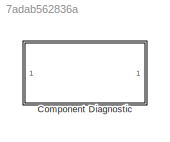
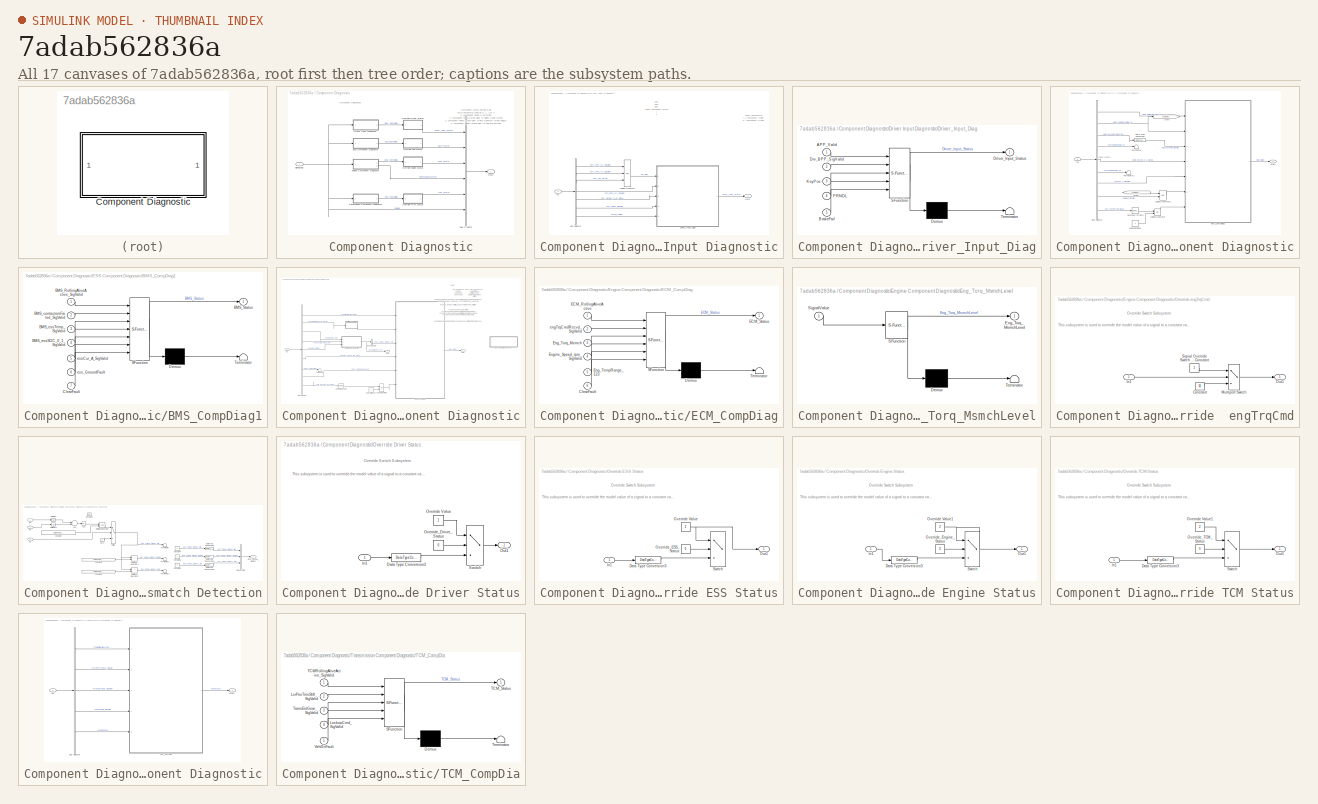
[diagram: thumbnail index - all 17 canvases of the model, root first then tree order]
MODEL slx_7adab562836a
KIND library
CONFIG AbsTol = auto
CONFIG EnableMultiTasking = off
CONFIG FixedStep = auto
CONFIG MaxStep = auto
CONFIG MinStep = auto
CONFIG RelTol = 1e-3
CONFIG SampleTimeConstraint = Unconstrained
CONFIG Solver = VariableStepAuto
CONFIG SolverName = VariableStepAuto
CONFIG StartTime = 0.0
CONFIG StopTime = 10.0
BLOCK [SubSystem] Component Diagnostic
  Ports = [1, 1]
  RequestExecContextInheritance = off
  Variant = off
BLOCK [BusCreator] Component Diagnostic/Bus Creator
  DisplayOption = bar
  InheritFromInputs = on
  Inputs = 6
  Ports = [6, 1]
BLOCK [SubSystem] Component Diagnostic/Driver Input Diagnostic
  Ports = [1, 1]
  RequestExecContextInheritance = off
  Variant = off
BLOCK [BusSelector] Component Diagnostic/Driver Input Diagnostic/Bus Selector
  OutputAsBus = off
  OutputSignals = Driver_SigDiag.Drv_APP1_[%]_SigValid,Driver_SigDiag.Drv_APP2_[%]_SigValid,Driver_SigDiag.Drv_APP_Agree,Driver_SigDiag.Drv_BPP_[%]_SigValid,Driver_SigDiag.Drv_KeyPos_[0 3]_SigValid,Driver_SigDiag.Drv_PRNDL_SigValid,Driver_SigDiag.Brake_Failed
  Ports = [1, 7]
BLOCK [SubSystem] Component Diagnostic/Driver Input Diagnostic/Driver_Input_Diag
  ErrorFcn = Stateflow.Translate.translate
  PermitHierarchicalResolution = ExplicitOnly
  Ports = [5, 1]
  RequestExecContextInheritance = off
  SFBlockType = Chart
  TreatAsAtomicUnit = on
  Variant = off
BLOCK [Demux] Component Diagnostic/Driver Input Diagnostic/Driver_Input_Diag/ Demux 
  Outputs = 1
  Ports = [1, 1]
BLOCK [S-Function] Component Diagnostic/Driver Input Diagnostic/Driver_Input_Diag/ SFunction 
  EnableBusSupport = on
  FunctionName = sf_sfun
  PortCounts = [5 2]
  Ports = [5, 2]
  SFcnIsStateOwnerBlock = off
  SFunctionDeploymentMode = off
  Tag = Stateflow S-Function lib_ComponentDiagnostic 3
BLOCK [Terminator] Component Diagnostic/Driver Input Diagnostic/Driver_Input_Diag/ Terminator 
BLOCK [Inport] Component Diagnostic/Driver Input Diagnostic/Driver_Input_Diag/APP_Valid
  IconDisplay = Port number
BLOCK [Inport] Component Diagnostic/Driver Input Diagnostic/Driver_Input_Diag/BrakeFail
  IconDisplay = Port number
  Port = 5
BLOCK [Outport] Component Diagnostic/Driver Input Diagnostic/Driver_Input_Diag/Driver_Input_Status
  IconDisplay = Port number
BLOCK [Inport] Component Diagnostic/Driver Input Diagnostic/Driver_Input_Diag/Drv_BPP_SigValid
  IconDisplay = Port number
  Port = 2
BLOCK [Inport] Component Diagnostic/Driver Input Diagnostic/Driver_Input_Diag/KeyPos
  IconDisplay = Port number
  Port = 3
BLOCK [Inport] Component Diagnostic/Driver Input Diagnostic/Driver_Input_Diag/PRNDL
  IconDisplay = Port number
  Port = 4
BLOCK [Inport] Component Diagnostic/Driver Input Diagnostic/In1
  IconDisplay = Port number
BLOCK [Logic] Component Diagnostic/Driver Input Diagnostic/Logical Operator
  AllPortsSameDT = off
  Inputs = 3
  OutDataTypeStr = boolean
  Ports = [3, 1]
BLOCK [Outport] Component Diagnostic/Driver Input Diagnostic/Out1
  IconDisplay = Port number
BLOCK [SubSystem] Component Diagnostic/ESS Component Diagnostic
  Ports = [1, 1]
  RequestExecContextInheritance = off
  Variant = off
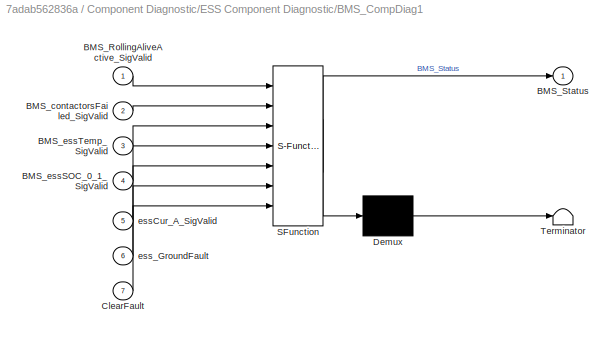
BLOCK [SubSystem] Component Diagnostic/ESS Component Diagnostic/BMS_CompDiag1
  ErrorFcn = Stateflow.Translate.translate
  PermitHierarchicalResolution = ExplicitOnly
  Ports = [7, 1]
  RequestExecContextInheritance = off
  SFBlockType = Chart
  TreatAsAtomicUnit = on
  Variant = off
BLOCK [Demux] Component Diagnostic/ESS Component Diagnostic/BMS_CompDiag1/ Demux 
  Outputs = 1
  Ports = [1, 1]
BLOCK [S-Function] Component Diagnostic/ESS Component Diagnostic/BMS_CompDiag1/ SFunction 
  EnableBusSupport = on
  FunctionName = sf_sfun
  PortCounts = [7 2]
  Ports = [7, 2]
  SFcnIsStateOwnerBlock = off
  SFunctionDeploymentMode = off
  Tag = Stateflow S-Function lib_ComponentDiagnostic 5
BLOCK [Terminator] Component Diagnostic/ESS Component Diagnostic/BMS_CompDiag1/ Terminator 
BLOCK [Inport] Component Diagnostic/ESS Component Diagnostic/BMS_CompDiag1/BMS_RollingAliveActive_SigValid
  IconDisplay = Port number
BLOCK [Outport] Component Diagnostic/ESS Component Diagnostic/BMS_CompDiag1/BMS_Status
  IconDisplay = Port number
BLOCK [Inport] Component Diagnostic/ESS Component Diagnostic/BMS_CompDiag1/BMS_contactorsFailed_SigValid
  IconDisplay = Port number
  Port = 2
BLOCK [Inport] Component Diagnostic/ESS Component Diagnostic/BMS_CompDiag1/BMS_essSOC_0_1_SigValid
  IconDisplay = Port number
  Port = 4
BLOCK [Inport] Component Diagnostic/ESS Component Diagnostic/BMS_CompDiag1/BMS_essTemp_SigValid
  IconDisplay = Port number
  Port = 3
BLOCK [Inport] Component Diagnostic/ESS Component Diagnostic/BMS_CompDiag1/ClearFault
  IconDisplay = Port number
  Port = 7
BLOCK [Inport] Component Diagnostic/ESS Component Diagnostic/BMS_CompDiag1/essCur_A_SigValid
  IconDisplay = Port number
  Port = 5
BLOCK [Inport] Component Diagnostic/ESS Component Diagnostic/BMS_CompDiag1/ess_GroundFault
  IconDisplay = Port number
  Port = 6
BLOCK [BusSelector] Component Diagnostic/ESS Component Diagnostic/Bus Selector
  OutputAsBus = off
  OutputSignals = ESS_SigDiag.BMS_RollingAliveActive_SigValid,ESS_SigDiag.BMS_contactorsFailed_Detected,ESS_SigDiag.BMS_essTemp_[degC]_SigValid,ESS_SigDiag.essTempRange[0_4],ESS_SigDiag.BMS_essSOC_0_1_SigValid,ESS_SigDiag.essTempRange[0_4],ESS_SigDiag.essCur_A_SigValid,ESS_SigDiag.BMSgdf_SigValid,Driver_SigDiag.Drv_KeyPos_[0 3]_SigValid
  Ports = [1, 9]
BLOCK [Reference] Component Diagnostic/ESS Component Diagnostic/Compare To Zero  REF=simulink/Logic and Bit
Operations/Compare
To Zero
  Ports = [1, 1]
  SourceBlock = simulink/Logic and Bit\nOperations/Compare\nTo Zero
  SourceProductBaseCode = SL
  SourceProductName = Simulink
  SourceType = Compare To Zero
BLOCK [DataTypeConversion] Component Diagnostic/ESS Component Diagnostic/Data Type Conversion
  RndMeth = Floor
  SaturateOnIntegerOverflow = off
BLOCK [From] Component Diagnostic/ESS Component Diagnostic/From
  GotoTag = contactorsFailed_Detected
BLOCK [Goto] Component Diagnostic/ESS Component Diagnostic/Goto
  GotoTag = contactorsFailed_Detected
BLOCK [Constant] Component Diagnostic/ESS Component Diagnostic/HVessFltReset
BLOCK [Inport] Component Diagnostic/ESS Component Diagnostic/In1
  IconDisplay = Port number
BLOCK [Logic] Component Diagnostic/ESS Component Diagnostic/Logical Operator
  AllPortsSameDT = off
  Operator = OR
  OutDataTypeStr = boolean
  Ports = [2, 1]
BLOCK [Logic] Component Diagnostic/ESS Component Diagnostic/Logical Operator1
  AllPortsSameDT = off
  OutDataTypeStr = boolean
  Ports = [2, 1]
BLOCK [Outport] Component Diagnostic/ESS Component Diagnostic/Out1
  IconDisplay = Port number
BLOCK [Terminator] Component Diagnostic/ESS Component Diagnostic/Terminator
BLOCK [Terminator] Component Diagnostic/ESS Component Diagnostic/Terminator1
BLOCK [SubSystem] Component Diagnostic/Engine Component Diagnostic
  Ports = [1, 2]
  RequestExecContextInheritance = off
  Variant = off
BLOCK [BusSelector] Component Diagnostic/Engine Component Diagnostic/Bus Selector
  OutputAsBus = off
  OutputSignals = Engine_SigDiag.ECMRollingAliveActive,Engine_SigDiag.engTrqCmdRecvd_SigValid,Engine_SigDiag.ECMTrqCmd_Nm,Engine_SigDiag.EngActStdyStTorq_Nm,Engine_SigDiag.EngRunAtValid,Engine_SigDiag.Engine_Speed_rpm_SigValid,Engine_SigDiag.Eng_TempValid,Engine_SigDiag.Eng_TempRange[123],Driver_SigDiag.Drv_KeyPos_[0 3]_SigValid
  Ports = [1, 9]
BLOCK [BusSelector] Component Diagnostic/Engine Component Diagnostic/Bus Selector1
  OutputAsBus = off
  OutputSignals = Eng_Torque_Mismch_Critical
  Ports = [1, 1]
BLOCK [Reference] Component Diagnostic/Engine Component Diagnostic/Compare To Zero  REF=simulink/Logic and Bit
Operations/Compare
To Zero
  Ports = [1, 1]
  SourceBlock = simulink/Logic and Bit\nOperations/Compare\nTo Zero
  SourceProductBaseCode = SL
  SourceProductName = Simulink
  SourceType = Compare To Zero
BLOCK [SubSystem] Component Diagnostic/Engine Component Diagnostic/ECM_CompDiag
  ErrorFcn = Stateflow.Translate.translate
  PermitHierarchicalResolution = ExplicitOnly
  Ports = [6, 1]
  RequestExecContextInheritance = off
  SFBlockType = Chart
  TreatAsAtomicUnit = on
  Variant = off
BLOCK [Demux] Component Diagnostic/Engine Component Diagnostic/ECM_CompDiag/ Demux 
  Outputs = 1
  Ports = [1, 1]
BLOCK [S-Function] Component Diagnostic/Engine Component Diagnostic/ECM_CompDiag/ SFunction 
  EnableBusSupport = on
  FunctionName = sf_sfun
  PortCounts = [6 2]
  Ports = [6, 2]
  SFcnIsStateOwnerBlock = off
  SFunctionDeploymentMode = off
  Tag = Stateflow S-Function lib_ComponentDiagnostic 6
BLOCK [Terminator] Component Diagnostic/Engine Component Diagnostic/ECM_CompDiag/ Terminator 
BLOCK [Inport] Component Diagnostic/Engine Component Diagnostic/ECM_CompDiag/ClearFault
  IconDisplay = Port number
  Port = 6
BLOCK [Inport] Component Diagnostic/Engine Component Diagnostic/ECM_CompDiag/ECM_RollingAliveActive
  IconDisplay = Port number
BLOCK [Outport] Component Diagnostic/Engine Component Diagnostic/ECM_CompDiag/ECM_Status
  IconDisplay = Port number
BLOCK [Inport] Component Diagnostic/Engine Component Diagnostic/ECM_CompDiag/Eng_TempRange_123
  IconDisplay = Port number
  Port = 5
BLOCK [Inport] Component Diagnostic/Engine Component Diagnostic/ECM_CompDiag/Eng_Torq_Msmch
  IconDisplay = Port number
  Port = 3
BLOCK [Inport] Component Diagnostic/Engine Component Diagnostic/ECM_CompDiag/Engine_Speed_rpm_SigValid
  IconDisplay = Port number
  Port = 4
BLOCK [Inport] Component Diagnostic/Engine Component Diagnostic/ECM_CompDiag/engTrqCmdRecvd_SigValid
  IconDisplay = Port number
  Port = 2
BLOCK [Constant] Component Diagnostic/Engine Component Diagnostic/Eng_FltReset
BLOCK [SubSystem] Component Diagnostic/Engine Component Diagnostic/Eng_Torq_MsmchLevel
  Commented = on
  ErrorFcn = Stateflow.Translate.translate
  PermitHierarchicalResolution = ExplicitOnly
  Ports = [1, 1]
  RequestExecContextInheritance = off
  SFBlockType = Chart
  TreatAsAtomicUnit = on
  Variant = off
BLOCK [Demux] Component Diagnostic/Engine Component Diagnostic/Eng_Torq_MsmchLevel/ Demux 
  Outputs = 1
  Ports = [1, 1]
BLOCK [S-Function] Component Diagnostic/Engine Component Diagnostic/Eng_Torq_MsmchLevel/ SFunction 
  EnableBusSupport = on
  FunctionName = sf_sfun
  Parameters = ENGTRQ_MSMCH_Degraded_CP,ENGTRQ_MSMCH_ErrCritical_CP,ENGTRQ_MSMCH_LimpHome_CP
  PortCounts = [1 2]
  Ports = [1, 2]
  SFcnIsStateOwnerBlock = off
  SFunctionDeploymentMode = off
  Tag = Stateflow S-Function lib_ComponentDiagnostic 7
BLOCK [Terminator] Component Diagnostic/Engine Component Diagnostic/Eng_Torq_MsmchLevel/ Terminator 
BLOCK [Outport] Component Diagnostic/Engine Component Diagnostic/Eng_Torq_MsmchLevel/Eng_Torq_MsmchLevel
  IconDisplay = Port number
BLOCK [Inport] Component Diagnostic/Engine Component Diagnostic/Eng_Torq_MsmchLevel/SignalValue
  IconDisplay = Port number
BLOCK [Inport] Component Diagnostic/Engine Component Diagnostic/In1
  IconDisplay = Port number
BLOCK [Logic] Component Diagnostic/Engine Component Diagnostic/Logical Operator
  AllPortsSameDT = off
  Operator = OR
  OutDataTypeStr = boolean
  Ports = [2, 1]
BLOCK [Outport] Component Diagnostic/Engine Component Diagnostic/Out1
  IconDisplay = Port number
BLOCK [Outport] Component Diagnostic/Engine Component Diagnostic/Out2
  IconDisplay = Port number
  Port = 2
BLOCK [SubSystem] Component Diagnostic/Engine Component Diagnostic/Override  engTrqCmd
  Ports = [1, 1]
  RequestExecContextInheritance = off
  Variant = off
BLOCK [Constant] Component Diagnostic/Engine Component Diagnostic/Override  engTrqCmd/Constant
  Value = 50
BLOCK [Inport] Component Diagnostic/Engine Component Diagnostic/Override  engTrqCmd/In1
  IconDisplay = Port number
BLOCK [MultiPortSwitch] Component Diagnostic/Engine Component Diagnostic/Override  engTrqCmd/Multiport Switch
  DataPortOrder = Zero-based contiguous
  InputSameDT = off
  Inputs = 2
  Ports = [3, 1]
  SaturateOnIntegerOverflow = off
  zeroidx = on
BLOCK [Outport] Component Diagnostic/Engine Component Diagnostic/Override  engTrqCmd/Out1
  IconDisplay = Port number
BLOCK [Constant] Component Diagnostic/Engine Component Diagnostic/Override  engTrqCmd/Signal Override Switch 0 = Use Model 1 = Use Constant
BLOCK [Terminator] Component Diagnostic/Engine Component Diagnostic/Terminator1
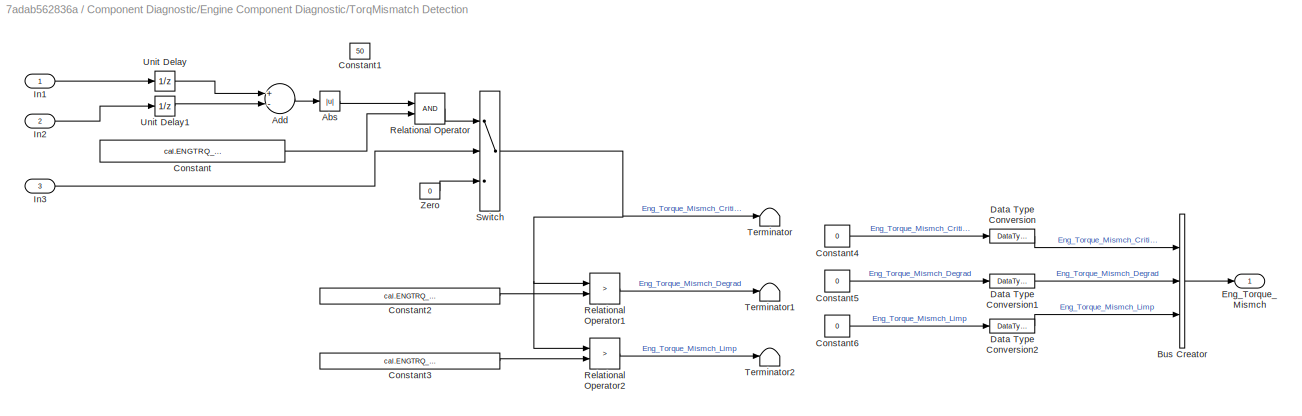
BLOCK [SubSystem] Component Diagnostic/Engine Component Diagnostic/TorqMismatch Detection
  Ports = [3, 1]
  RequestExecContextInheritance = off
  Variant = off
BLOCK [Abs] Component Diagnostic/Engine Component Diagnostic/TorqMismatch Detection/Abs
  SaturateOnIntegerOverflow = off
BLOCK [Sum] Component Diagnostic/Engine Component Diagnostic/TorqMismatch Detection/Add
  InputSameDT = off
  Inputs = +-
  OutDataTypeStr = Inherit: Inherit via internal rule
  Ports = [2, 1]
  SaturateOnIntegerOverflow = off
BLOCK [BusCreator] Component Diagnostic/Engine Component Diagnostic/TorqMismatch Detection/Bus Creator
  DisplayOption = bar
  InheritFromInputs = on
  Inputs = 3
  Ports = [3, 1]
BLOCK [Constant] Component Diagnostic/Engine Component Diagnostic/TorqMismatch Detection/Constant
  Value = cal.ENGTRQ_MSMCH.ErrCritical_CP
BLOCK [Constant] Component Diagnostic/Engine Component Diagnostic/TorqMismatch Detection/Constant1
  Value = 50
BLOCK [Constant] Component Diagnostic/Engine Component Diagnostic/TorqMismatch Detection/Constant2
  Value = cal.ENGTRQ_MSMCH.Degraded_CP
BLOCK [Constant] Component Diagnostic/Engine Component Diagnostic/TorqMismatch Detection/Constant3
  Value = cal.ENGTRQ_MSMCH.LimpHome_CP
BLOCK [Constant] Component Diagnostic/Engine Component Diagnostic/TorqMismatch Detection/Constant4
  Value = 0
BLOCK [Constant] Component Diagnostic/Engine Component Diagnostic/TorqMismatch Detection/Constant5
  Value = 0
BLOCK [Constant] Component Diagnostic/Engine Component Diagnostic/TorqMismatch Detection/Constant6
  Value = 0
BLOCK [DataTypeConversion] Component Diagnostic/Engine Component Diagnostic/TorqMismatch Detection/Data Type Conversion
  OutDataTypeStr = boolean
  RndMeth = Floor
  SaturateOnIntegerOverflow = off
BLOCK [DataTypeConversion] Component Diagnostic/Engine Component Diagnostic/TorqMismatch Detection/Data Type Conversion1
  OutDataTypeStr = boolean
  RndMeth = Floor
  SaturateOnIntegerOverflow = off
BLOCK [DataTypeConversion] Component Diagnostic/Engine Component Diagnostic/TorqMismatch Detection/Data Type Conversion2
  OutDataTypeStr = boolean
  RndMeth = Floor
  SaturateOnIntegerOverflow = off
BLOCK [Outport] Component Diagnostic/Engine Component Diagnostic/TorqMismatch Detection/Eng_Torque_Mismch
  IconDisplay = Port number
BLOCK [Inport] Component Diagnostic/Engine Component Diagnostic/TorqMismatch Detection/In1
  IconDisplay = Port number
BLOCK [Inport] Component Diagnostic/Engine Component Diagnostic/TorqMismatch Detection/In2
  IconDisplay = Port number
  Port = 2
BLOCK [Inport] Component Diagnostic/Engine Component Diagnostic/TorqMismatch Detection/In3
  IconDisplay = Port number
  Port = 3
BLOCK [RelationalOperator] Component Diagnostic/Engine Component Diagnostic/TorqMismatch Detection/Relational Operator
  InputSameDT = off
  OutDataTypeStr = boolean
  Ports = [2, 1]
BLOCK [RelationalOperator] Component Diagnostic/Engine Component Diagnostic/TorqMismatch Detection/Relational Operator1
  InputSameDT = off
  Operator = >
  OutDataTypeStr = boolean
  Ports = [2, 1]
BLOCK [RelationalOperator] Component Diagnostic/Engine Component Diagnostic/TorqMismatch Detection/Relational Operator2
  InputSameDT = off
  Operator = >
  OutDataTypeStr = boolean
  Ports = [2, 1]
BLOCK [Switch] Component Diagnostic/Engine Component Diagnostic/TorqMismatch Detection/Switch
  InputSameDT = off
  SaturateOnIntegerOverflow = off
  Threshold = 1
BLOCK [Terminator] Component Diagnostic/Engine Component Diagnostic/TorqMismatch Detection/Terminator
BLOCK [Terminator] Component Diagnostic/Engine Component Diagnostic/TorqMismatch Detection/Terminator1
BLOCK [Terminator] Component Diagnostic/Engine Component Diagnostic/TorqMismatch Detection/Terminator2
BLOCK [UnitDelay] Component Diagnostic/Engine Component Diagnostic/TorqMismatch Detection/Unit Delay
  Commented = through
  InputProcessing = Elements as channels (sample based)
  SampleTime = -1
BLOCK [UnitDelay] Component Diagnostic/Engine Component Diagnostic/TorqMismatch Detection/Unit Delay1
  Commented = through
  InputProcessing = Elements as channels (sample based)
  SampleTime = -1
BLOCK [Constant] Component Diagnostic/Engine Component Diagnostic/TorqMismatch Detection/Zero 
  Value = 0
BLOCK [Outport] Component Diagnostic/Out2
  IconDisplay = Port number
BLOCK [SubSystem] Component Diagnostic/Override Driver Status
  Ports = [1, 1]
  RequestExecContextInheritance = off
  Variant = off
BLOCK [DataTypeConversion] Component Diagnostic/Override Driver Status/Data Type Conversion3
  RndMeth = Floor
  SaturateOnIntegerOverflow = off
BLOCK [Inport] Component Diagnostic/Override Driver Status/In1
  IconDisplay = Port number
BLOCK [Outport] Component Diagnostic/Override Driver Status/Out1
  IconDisplay = Port number
BLOCK [Constant] Component Diagnostic/Override Driver Status/Override Value
  OutDataTypeStr = double
BLOCK [Constant] Component Diagnostic/Override Driver Status/Override_Driver_Status
  Value = 0
BLOCK [Switch] Component Diagnostic/Override Driver Status/Switch
  Criteria = u2 > Threshold
  InputSameDT = off
  SaturateOnIntegerOverflow = off
BLOCK [SubSystem] Component Diagnostic/Override ESS Status
  Ports = [1, 1]
  RequestExecContextInheritance = off
  Variant = off
BLOCK [DataTypeConversion] Component Diagnostic/Override ESS Status/Data Type Conversion3
  RndMeth = Floor
  SaturateOnIntegerOverflow = off
BLOCK [Inport] Component Diagnostic/Override ESS Status/In1
  IconDisplay = Port number
BLOCK [Outport] Component Diagnostic/Override ESS Status/Out1
  IconDisplay = Port number
BLOCK [Constant] Component Diagnostic/Override ESS Status/Override Value
  OutDataTypeStr = double
  Value = 2
BLOCK [Constant] Component Diagnostic/Override ESS Status/Override_ESS_Status
  Value = 0
BLOCK [Switch] Component Diagnostic/Override ESS Status/Switch
  Criteria = u2 > Threshold
  InputSameDT = off
  SaturateOnIntegerOverflow = off
BLOCK [SubSystem] Component Diagnostic/Override Engine Status
  Ports = [1, 1]
  RequestExecContextInheritance = off
  Variant = off
BLOCK [DataTypeConversion] Component Diagnostic/Override Engine Status/Data Type Conversion3
  RndMeth = Floor
  SaturateOnIntegerOverflow = off
BLOCK [Inport] Component Diagnostic/Override Engine Status/In1
  IconDisplay = Port number
BLOCK [Outport] Component Diagnostic/Override Engine Status/Out1
  IconDisplay = Port number
BLOCK [Constant] Component Diagnostic/Override Engine Status/Override Value1
  OutDataTypeStr = double
  Value = 2
BLOCK [Constant] Component Diagnostic/Override Engine Status/Override_Engine_Status
  Value = 0
BLOCK [Switch] Component Diagnostic/Override Engine Status/Switch
  Criteria = u2 > Threshold
  InputSameDT = off
  SaturateOnIntegerOverflow = off
BLOCK [SubSystem] Component Diagnostic/Override TCM Status
  Ports = [1, 1]
  RequestExecContextInheritance = off
  Variant = off
BLOCK [DataTypeConversion] Component Diagnostic/Override TCM Status/Data Type Conversion3
  RndMeth = Floor
  SaturateOnIntegerOverflow = off
BLOCK [Inport] Component Diagnostic/Override TCM Status/In1
  IconDisplay = Port number
BLOCK [Outport] Component Diagnostic/Override TCM Status/Out1
  IconDisplay = Port number
BLOCK [Constant] Component Diagnostic/Override TCM Status/Override Value1
  OutDataTypeStr = double
  Value = 2
BLOCK [Constant] Component Diagnostic/Override TCM Status/Override_TCM_Status
  Value = 0
BLOCK [Switch] Component Diagnostic/Override TCM Status/Switch
  Criteria = u2 > Threshold
  InputSameDT = off
  SaturateOnIntegerOverflow = off
BLOCK [Inport] Component Diagnostic/SignalDiag
  IconDisplay = Port number
BLOCK [SubSystem] Component Diagnostic/Transmission Component Diagnostic
  Ports = [1, 1]
  RequestExecContextInheritance = off
  Variant = off
BLOCK [BusSelector] Component Diagnostic/Transmission Component Diagnostic/Bus Selector
  OutputAsBus = off
  OutputSignals = Transmission_SigDiag.TCMRollingAliveActive_SigValid,Transmission_SigDiag.LvrPosTrnsShft_SigValid,Transmission_SigDiag.TransEstGear_SigValid,Transmission_SigDiag.LockupCmd_SigValid,Transmission_SigDiag.VehDirFault
  Ports = [1, 5]
BLOCK [Inport] Component Diagnostic/Transmission Component Diagnostic/In1
  IconDisplay = Port number
BLOCK [Outport] Component Diagnostic/Transmission Component Diagnostic/Out1
  IconDisplay = Port number
BLOCK [SubSystem] Component Diagnostic/Transmission Component Diagnostic/TCM_CompDia
  ErrorFcn = Stateflow.Translate.translate
  PermitHierarchicalResolution = ExplicitOnly
  Ports = [5, 1]
  RequestExecContextInheritance = off
  SFBlockType = Chart
  TreatAsAtomicUnit = on
  Variant = off
BLOCK [Demux] Component Diagnostic/Transmission Component Diagnostic/TCM_CompDia/ Demux 
  Outputs = 1
  Ports = [1, 1]
BLOCK [S-Function] Component Diagnostic/Transmission Component Diagnostic/TCM_CompDia/ SFunction 
  EnableBusSupport = on
  FunctionName = sf_sfun
  PortCounts = [5 2]
  Ports = [5, 2]
  SFcnIsStateOwnerBlock = off
  SFunctionDeploymentMode = off
  Tag = Stateflow S-Function lib_ComponentDiagnostic 67
BLOCK [Terminator] Component Diagnostic/Transmission Component Diagnostic/TCM_CompDia/ Terminator 
BLOCK [Inport] Component Diagnostic/Transmission Component Diagnostic/TCM_CompDia/LockupCmd_SigValid
  IconDisplay = Port number
  Port = 4
BLOCK [Inport] Component Diagnostic/Transmission Component Diagnostic/TCM_CompDia/LvrPosTrnsShft_SigValid
  IconDisplay = Port number
  Port = 2
BLOCK [Inport] Component Diagnostic/Transmission Component Diagnostic/TCM_CompDia/TCMRollingAliveActive_SigValid
  IconDisplay = Port number
BLOCK [Outport] Component Diagnostic/Transmission Component Diagnostic/TCM_CompDia/TCM_Status
  IconDisplay = Port number
BLOCK [Inport] Component Diagnostic/Transmission Component Diagnostic/TCM_CompDia/TransEstGear_SigValid
  IconDisplay = Port number
  Port = 3
BLOCK [Inport] Component Diagnostic/Transmission Component Diagnostic/TCM_CompDia/VehDirFault
  IconDisplay = Port number
  Port = 5
ANNOTATION Component Diagnostic: Component Diagnostics
ANNOTATION Component Diagnostic: Component Status Setting Rule xxx_CompStatus could be 0, 1, 2 or 3 0: component needs to be offline 1: component needs torque plant to deliver creep torque 2: component needs torque plant to limit maximum torque delivery 3: component needs torque plant to operate normally
ANNOTATION Component Diagnostic/Driver Input Diagnostic: Driver_CompStatus 1 = Component Online 0 = Component Offline
ANNOTATION Component Diagnostic/Driver Input Diagnostic: APP1 APP2 BPP Driver Component Status 1 1 1 1 0 1 1 1 1 0 1 1 0 0 1 0 1 1 0 0 0 0 0 0
ANNOTATION Component Diagnostic/ESS Component Diagnostic: (Need modify)
ANNOTATION Component Diagnostic/Engine Component Diagnostic: 0: component needs to be offline 1: component needs torque plant to deliver creep torque 2: component needs torque plant to limit maximum torque delivery 3: component needs torque plant to operate normally
ANNOTATION Component Diagnostic/Engine Component Diagnostic: ENGTRQ_MSMCH_Degraded_CP (40Nm): ENGTRQ_Degraded fault code. ENGTRQ_MSMCH_LimpHome_CP (70Nm): ENGTRQ_LimpHome ENGTRQ_MSMCH_ErrCritical_CP (100Nm): ENGTRQ_ErrCritical
ANNOTATION Component Diagnostic/Engine Component Diagnostic: Eng_Torq_MsmchLevel 1:Normal torque 2: Limit max power 3: Deliver creep torque 4: offline
ANNOTATION Component Diagnostic/Engine Component Diagnostic: Eng_tempRange 1: normal 2: high range 3:above max
ANNOTATION Component Diagnostic/Engine Component Diagnostic: Notes
ANNOTATION Component Diagnostic/Engine Component Diagnostic: add the temperature, mismatch torquesignal and have different status to the component
ANNOTATION Component Diagnostic/Engine Component Diagnostic/Override  engTrqCmd: Override Switch Subsystem
ANNOTATION Component Diagnostic/Engine Component Diagnostic/Override  engTrqCmd: This subsystem is used to override the model value of a signal to a constant value
ANNOTATION Component Diagnostic/Override Driver Status: Override Switch Subsystem
ANNOTATION Component Diagnostic/Override Driver Status: This subsystem is used to override the model value of a signal to a constant value
ANNOTATION Component Diagnostic/Override ESS Status: Override Switch Subsystem
ANNOTATION Component Diagnostic/Override ESS Status: This subsystem is used to override the model value of a signal to a constant value
ANNOTATION Component Diagnostic/Override Engine Status: Override Switch Subsystem
ANNOTATION Component Diagnostic/Override Engine Status: This subsystem is used to override the model value of a signal to a constant value
ANNOTATION Component Diagnostic/Override TCM Status: Override Switch Subsystem
ANNOTATION Component Diagnostic/Override TCM Status: This subsystem is used to override the model value of a signal to a constant value
LINE Component Diagnostic/Bus Creator:1 -> Component Diagnostic/Out2:1
LINE Component Diagnostic/Driver Input Diagnostic/Bus Selector:1 -> Component Diagnostic/Driver Input Diagnostic/Logical Operator:1
LINE Component Diagnostic/Driver Input Diagnostic/Bus Selector:2 -> Component Diagnostic/Driver Input Diagnostic/Logical Operator:2
LINE Component Diagnostic/Driver Input Diagnostic/Bus Selector:3 -> Component Diagnostic/Driver Input Diagnostic/Logical Operator:3
LINE Component Diagnostic/Driver Input Diagnostic/Bus Selector:4 -> Component Diagnostic/Driver Input Diagnostic/Driver_Input_Diag:2
LINE Component Diagnostic/Driver Input Diagnostic/Bus Selector:5 -> Component Diagnostic/Driver Input Diagnostic/Driver_Input_Diag:3
LINE Component Diagnostic/Driver Input Diagnostic/Bus Selector:6 -> Component Diagnostic/Driver Input Diagnostic/Driver_Input_Diag:4
LINE Component Diagnostic/Driver Input Diagnostic/Bus Selector:7 -> Component Diagnostic/Driver Input Diagnostic/Driver_Input_Diag:5
LINE Component Diagnostic/Driver Input Diagnostic/Driver_Input_Diag:1 -> Component Diagnostic/Driver Input Diagnostic/Out1:1
LINE Component Diagnostic/Driver Input Diagnostic/In1:1 -> Component Diagnostic/Driver Input Diagnostic/Bus Selector:1
LINE Component Diagnostic/Driver Input Diagnostic/Logical Operator:1 -> Component Diagnostic/Driver Input Diagnostic/Driver_Input_Diag:1
LINE Component Diagnostic/Driver Input Diagnostic:1 -> Component Diagnostic/Override Driver Status:1
LINE Component Diagnostic/ESS Component Diagnostic/BMS_CompDiag1:1 -> Component Diagnostic/ESS Component Diagnostic/Out1:1
LINE Component Diagnostic/ESS Component Diagnostic/Bus Selector:1 -> Component Diagnostic/ESS Component Diagnostic/BMS_CompDiag1:1
NET Component Diagnostic/ESS Component Diagnostic/Bus Selector:2 -> Component Diagnostic/ESS Component Diagnostic/BMS_CompDiag1:2, Component Diagnostic/ESS Component Diagnostic/Goto:1
LINE Component Diagnostic/ESS Component Diagnostic/Bus Selector:3 -> Component Diagnostic/ESS Component Diagnostic/Data Type Conversion:1
LINE Component Diagnostic/ESS Component Diagnostic/Bus Selector:4 -> Component Diagnostic/ESS Component Diagnostic/Terminator:1
LINE Component Diagnostic/ESS Component Diagnostic/Bus Selector:5 -> Component Diagnostic/ESS Component Diagnostic/BMS_CompDiag1:4
LINE Component Diagnostic/ESS Component Diagnostic/Bus Selector:6 -> Component Diagnostic/ESS Component Diagnostic/Terminator1:1
LINE Component Diagnostic/ESS Component Diagnostic/Bus Selector:7 -> Component Diagnostic/ESS Component Diagnostic/BMS_CompDiag1:5
LINE Component Diagnostic/ESS Component Diagnostic/Bus Selector:8 -> Component Diagnostic/ESS Component Diagnostic/Logical Operator1:2
LINE Component Diagnostic/ESS Component Diagnostic/Bus Selector:9 -> Component Diagnostic/ESS Component Diagnostic/Compare To Zero:1
LINE Component Diagnostic/ESS Component Diagnostic/Compare To Zero:1 -> Component Diagnostic/ESS Component Diagnostic/Logical Operator:1
LINE Component Diagnostic/ESS Component Diagnostic/Data Type Conversion:1 -> Component Diagnostic/ESS Component Diagnostic/BMS_CompDiag1:3
LINE Component Diagnostic/ESS Component Diagnostic/From:1 -> Component Diagnostic/ESS Component Diagnostic/Logical Operator1:1
LINE Component Diagnostic/ESS Component Diagnostic/HVessFltReset:1 -> Component Diagnostic/ESS Component Diagnostic/Logical Operator:2
LINE Component Diagnostic/ESS Component Diagnostic/In1:1 -> Component Diagnostic/ESS Component Diagnostic/Bus Selector:1
LINE Component Diagnostic/ESS Component Diagnostic/Logical Operator1:1 -> Component Diagnostic/ESS Component Diagnostic/BMS_CompDiag1:6
LINE Component Diagnostic/ESS Component Diagnostic/Logical Operator:1 -> Component Diagnostic/ESS Component Diagnostic/BMS_CompDiag1:7
LINE Component Diagnostic/ESS Component Diagnostic:1 -> Component Diagnostic/Override ESS Status:1
LINE Component Diagnostic/Engine Component Diagnostic/Bus Selector1:1 -> Component Diagnostic/Engine Component Diagnostic/ECM_CompDiag:3
LINE Component Diagnostic/Engine Component Diagnostic/Bus Selector:1 -> Component Diagnostic/Engine Component Diagnostic/ECM_CompDiag:1
LINE Component Diagnostic/Engine Component Diagnostic/Bus Selector:2 -> Component Diagnostic/Engine Component Diagnostic/Override  engTrqCmd:1
LINE Component Diagnostic/Engine Component Diagnostic/Bus Selector:3 -> Component Diagnostic/Engine Component Diagnostic/TorqMismatch Detection:1
LINE Component Diagnostic/Engine Component Diagnostic/Bus Selector:4 -> Component Diagnostic/Engine Component Diagnostic/TorqMismatch Detection:2
LINE Component Diagnostic/Engine Component Diagnostic/Bus Selector:5 -> Component Diagnostic/Engine Component Diagnostic/TorqMismatch Detection:3
LINE Component Diagnostic/Engine Component Diagnostic/Bus Selector:6 -> Component Diagnostic/Engine Component Diagnostic/ECM_CompDiag:4
LINE Component Diagnostic/Engine Component Diagnostic/Bus Selector:7 -> Component Diagnostic/Engine Component Diagnostic/Terminator1:1
LINE Component Diagnostic/Engine Component Diagnostic/Bus Selector:8 -> Component Diagnostic/Engine Component Diagnostic/ECM_CompDiag:5
LINE Component Diagnostic/Engine Component Diagnostic/Bus Selector:9 -> Component Diagnostic/Engine Component Diagnostic/Compare To Zero:1
LINE Component Diagnostic/Engine Component Diagnostic/Compare To Zero:1 -> Component Diagnostic/Engine Component Diagnostic/Logical Operator:1
LINE Component Diagnostic/Engine Component Diagnostic/ECM_CompDiag:1 -> Component Diagnostic/Engine Component Diagnostic/Out1:1
LINE Component Diagnostic/Engine Component Diagnostic/Eng_FltReset:1 -> Component Diagnostic/Engine Component Diagnostic/Logical Operator:2
LINE Component Diagnostic/Engine Component Diagnostic/In1:1 -> Component Diagnostic/Engine Component Diagnostic/Bus Selector:1
LINE Component Diagnostic/Engine Component Diagnostic/Logical Operator:1 -> Component Diagnostic/Engine Component Diagnostic/ECM_CompDiag:6
LINE Component Diagnostic/Engine Component Diagnostic/Override  engTrqCmd/Constant:1 -> Component Diagnostic/Engine Component Diagnostic/Override  engTrqCmd/Multiport Switch:3
LINE Component Diagnostic/Engine Component Diagnostic/Override  engTrqCmd/In1:1 -> Component Diagnostic/Engine Component Diagnostic/Override  engTrqCmd/Multiport Switch:2
LINE Component Diagnostic/Engine Component Diagnostic/Override  engTrqCmd/Multiport Switch:1 -> Component Diagnostic/Engine Component Diagnostic/Override  engTrqCmd/Out1:1
LINE Component Diagnostic/Engine Component Diagnostic/Override  engTrqCmd/Signal Override Switch 0 = Use Model 1 = Use Constant:1 -> Component Diagnostic/Engine Component Diagnostic/Override  engTrqCmd/Multiport Switch:1
LINE Component Diagnostic/Engine Component Diagnostic/Override  engTrqCmd:1 -> Component Diagnostic/Engine Component Diagnostic/ECM_CompDiag:2
LINE Component Diagnostic/Engine Component Diagnostic/TorqMismatch Detection/Abs:1 -> Component Diagnostic/Engine Component Diagnostic/TorqMismatch Detection/Relational Operator:1
LINE Component Diagnostic/Engine Component Diagnostic/TorqMismatch Detection/Add:1 -> Component Diagnostic/Engine Component Diagnostic/TorqMismatch Detection/Abs:1
LINE Component Diagnostic/Engine Component Diagnostic/TorqMismatch Detection/Bus Creator:1 -> Component Diagnostic/Engine Component Diagnostic/TorqMismatch Detection/Eng_Torque_Mismch:1
LINE Component Diagnostic/Engine Component Diagnostic/TorqMismatch Detection/Constant2:1 -> Component Diagnostic/Engine Component Diagnostic/TorqMismatch Detection/Relational Operator1:2
LINE Component Diagnostic/Engine Component Diagnostic/TorqMismatch Detection/Constant3:1 -> Component Diagnostic/Engine Component Diagnostic/TorqMismatch Detection/Relational Operator2:2
LINE Component Diagnostic/Engine Component Diagnostic/TorqMismatch Detection/Constant4:1 -> Component Diagnostic/Engine Component Diagnostic/TorqMismatch Detection/Data Type Conversion:1
LINE Component Diagnostic/Engine Component Diagnostic/TorqMismatch Detection/Constant5:1 -> Component Diagnostic/Engine Component Diagnostic/TorqMismatch Detection/Data Type Conversion1:1
LINE Component Diagnostic/Engine Component Diagnostic/TorqMismatch Detection/Constant6:1 -> Component Diagnostic/Engine Component Diagnostic/TorqMismatch Detection/Data Type Conversion2:1
LINE Component Diagnostic/Engine Component Diagnostic/TorqMismatch Detection/Constant:1 -> Component Diagnostic/Engine Component Diagnostic/TorqMismatch Detection/Relational Operator:2
LINE Component Diagnostic/Engine Component Diagnostic/TorqMismatch Detection/Data Type Conversion1:1 -> Component Diagnostic/Engine Component Diagnostic/TorqMismatch Detection/Bus Creator:2
LINE Component Diagnostic/Engine Component Diagnostic/TorqMismatch Detection/Data Type Conversion2:1 -> Component Diagnostic/Engine Component Diagnostic/TorqMismatch Detection/Bus Creator:3
LINE Component Diagnostic/Engine Component Diagnostic/TorqMismatch Detection/Data Type Conversion:1 -> Component Diagnostic/Engine Component Diagnostic/TorqMismatch Detection/Bus Creator:1
LINE Component Diagnostic/Engine Component Diagnostic/TorqMismatch Detection/In1:1 -> Component Diagnostic/Engine Component Diagnostic/TorqMismatch Detection/Unit Delay:1
LINE Component Diagnostic/Engine Component Diagnostic/TorqMismatch Detection/In2:1 -> Component Diagnostic/Engine Component Diagnostic/TorqMismatch Detection/Unit Delay1:1
LINE Component Diagnostic/Engine Component Diagnostic/TorqMismatch Detection/In3:1 -> Component Diagnostic/Engine Component Diagnostic/TorqMismatch Detection/Switch:2
LINE Component Diagnostic/Engine Component Diagnostic/TorqMismatch Detection/Relational Operator1:1 -> Component Diagnostic/Engine Component Diagnostic/TorqMismatch Detection/Terminator1:1
LINE Component Diagnostic/Engine Component Diagnostic/TorqMismatch Detection/Relational Operator2:1 -> Component Diagnostic/Engine Component Diagnostic/TorqMismatch Detection/Terminator2:1
LINE Component Diagnostic/Engine Component Diagnostic/TorqMismatch Detection/Relational Operator:1 -> Component Diagnostic/Engine Component Diagnostic/TorqMismatch Detection/Switch:1
NET Component Diagnostic/Engine Component Diagnostic/TorqMismatch Detection/Switch:1 -> Component Diagnostic/Engine Component Diagnostic/TorqMismatch Detection/Relational Operator1:1, Component Diagnostic/Engine Component Diagnostic/TorqMismatch Detection/Relational Operator2:1, Component Diagnostic/Engine Component Diagnostic/TorqMismatch Detection/Terminator:1
LINE Component Diagnostic/Engine Component Diagnostic/TorqMismatch Detection/Unit Delay1:1 -> Component Diagnostic/Engine Component Diagnostic/TorqMismatch Detection/Add:2
LINE Component Diagnostic/Engine Component Diagnostic/TorqMismatch Detection/Unit Delay:1 -> Component Diagnostic/Engine Component Diagnostic/TorqMismatch Detection/Add:1
LINE Component Diagnostic/Engine Component Diagnostic/TorqMismatch Detection/Zero :1 -> Component Diagnostic/Engine Component Diagnostic/TorqMismatch Detection/Switch:3
NET Component Diagnostic/Engine Component Diagnostic/TorqMismatch Detection:1 -> Component Diagnostic/Engine Component Diagnostic/Bus Selector1:1, Component Diagnostic/Engine Component Diagnostic/Out2:1
LINE Component Diagnostic/Engine Component Diagnostic:1 -> Component Diagnostic/Override Engine Status:1
LINE Component Diagnostic/Engine Component Diagnostic:2 -> Component Diagnostic/Bus Creator:4
LINE Component Diagnostic/Override Driver Status/Data Type Conversion3:1 -> Component Diagnostic/Override Driver Status/Switch:3
LINE Component Diagnostic/Override Driver Status/In1:1 -> Component Diagnostic/Override Driver Status/Data Type Conversion3:1
LINE Component Diagnostic/Override Driver Status/Override Value:1 -> Component Diagnostic/Override Driver Status/Switch:1
LINE Component Diagnostic/Override Driver Status/Override_Driver_Status:1 -> Component Diagnostic/Override Driver Status/Switch:2
LINE Component Diagnostic/Override Driver Status/Switch:1 -> Component Diagnostic/Override Driver Status/Out1:1
LINE Component Diagnostic/Override Driver Status:1 -> Component Diagnostic/Bus Creator:1
LINE Component Diagnostic/Override ESS Status/Data Type Conversion3:1 -> Component Diagnostic/Override ESS Status/Switch:3
LINE Component Diagnostic/Override ESS Status/In1:1 -> Component Diagnostic/Override ESS Status/Data Type Conversion3:1
NET Component Diagnostic/Override ESS Status/Override Value:1 -> Component Diagnostic/Override ESS Status/Out1:1, Component Diagnostic/Override ESS Status/Switch:1
LINE Component Diagnostic/Override ESS Status/Override_ESS_Status:1 -> Component Diagnostic/Override ESS Status/Switch:2
LINE Component Diagnostic/Override ESS Status:1 -> Component Diagnostic/Bus Creator:2
LINE Component Diagnostic/Override Engine Status/Data Type Conversion3:1 -> Component Diagnostic/Override Engine Status/Switch:3
LINE Component Diagnostic/Override Engine Status/In1:1 -> Component Diagnostic/Override Engine Status/Data Type Conversion3:1
NET Component Diagnostic/Override Engine Status/Override Value1:1 -> Component Diagnostic/Override Engine Status/Out1:1, Component Diagnostic/Override Engine Status/Switch:1
LINE Component Diagnostic/Override Engine Status/Override_Engine_Status:1 -> Component Diagnostic/Override Engine Status/Switch:2
LINE Component Diagnostic/Override Engine Status:1 -> Component Diagnostic/Bus Creator:3
LINE Component Diagnostic/Override TCM Status/Data Type Conversion3:1 -> Component Diagnostic/Override TCM Status/Switch:3
LINE Component Diagnostic/Override TCM Status/In1:1 -> Component Diagnostic/Override TCM Status/Data Type Conversion3:1
LINE Component Diagnostic/Override TCM Status/Override Value1:1 -> Component Diagnostic/Override TCM Status/Switch:1
LINE Component Diagnostic/Override TCM Status/Override_TCM_Status:1 -> Component Diagnostic/Override TCM Status/Switch:2
LINE Component Diagnostic/Override TCM Status/Switch:1 -> Component Diagnostic/Override TCM Status/Out1:1
LINE Component Diagnostic/Override TCM Status:1 -> Component Diagnostic/Bus Creator:5
NET Component Diagnostic/SignalDiag:1 -> Component Diagnostic/Bus Creator:6, Component Diagnostic/Driver Input Diagnostic:1, Component Diagnostic/ESS Component Diagnostic:1, Component Diagnostic/Engine Component Diagnostic:1, Component Diagnostic/Transmission Component Diagnostic:1
LINE Component Diagnostic/Transmission Component Diagnostic/Bus Selector:1 -> Component Diagnostic/Transmission Component Diagnostic/TCM_CompDia:1
LINE Component Diagnostic/Transmission Component Diagnostic/Bus Selector:2 -> Component Diagnostic/Transmission Component Diagnostic/TCM_CompDia:2
LINE Component Diagnostic/Transmission Component Diagnostic/Bus Selector:3 -> Component Diagnostic/Transmission Component Diagnostic/TCM_CompDia:3
LINE Component Diagnostic/Transmission Component Diagnostic/Bus Selector:4 -> Component Diagnostic/Transmission Component Diagnostic/TCM_CompDia:4
LINE Component Diagnostic/Transmission Component Diagnostic/Bus Selector:5 -> Component Diagnostic/Transmission Component Diagnostic/TCM_CompDia:5
LINE Component Diagnostic/Transmission Component Diagnostic/In1:1 -> Component Diagnostic/Transmission Component Diagnostic/Bus Selector:1
LINE Component Diagnostic/Transmission Component Diagnostic/TCM_CompDia:1 -> Component Diagnostic/Transmission Component Diagnostic/Out1:1
LINE Component Diagnostic/Transmission Component Diagnostic:1 -> Component Diagnostic/Override TCM Status:1
note: NET lines group one-source signal fan-out (src -> all destinations, sorted); 1:1 wires keep LINE
CHART Component Diagnostic/Driver Input Diagnostic/Driver_Input_Diag states=2 transitions=3
  STATE_LABEL 'Driver_Input_Offline\nen: Driver_Input_Status=0;'
  STATE_LABEL 'Driver_Input_Online\nen: Driver_Input_Status=1;'
CHART Component Diagnostic/ESS Component Diagnostic/BMS_CompDiag1 states=3 transitions=7
  STATE_LABEL 'BMS_Offline\nen: BMS_Status=0;'
  STATE_LABEL 'BMS_Online\nen:BMS_Status=2;'
  STATE_LABEL 'BMS_Limited\nen: BMS_Status=1;'
CHART Component Diagnostic/Engine Component Diagnostic/ECM_CompDiag states=3 transitions=7
  STATE_LABEL 'ECM_Offline\nen: ECM_Status=0;'
  STATE_LABEL 'ECM_Online\nen:ECM_Status=2;'
  STATE_LABEL 'ECM_Limited\nen: ECM_Status=1;'
CHART Component Diagnostic/Engine Component Diagnostic/Eng_Torq_MsmchLevel states=4 transitions=9
  STATE_LABEL 'Normal_Torque\nen: Eng_Torq_MsmchLevel==1'
  STATE_LABEL 'Creep_Torq_Allowed\nen: Eng_Torq_MsmchLvel==3'
  STATE_LABEL 'AboveMax\nen: Eng_Torq_MsmchLevel==4'
  STATE_LABEL 'Max_power_limited\nen: Eng_Torq_MsmchLvel==2'
CHART Component Diagnostic/Transmission Component Diagnostic/TCM_CompDia states=3 transitions=5
  STATE_LABEL 'TCM_Offline\nen: TCM_Status=0;'
  STATE_LABEL 'TCM_Limited\nen: TCM_Status=1;'
  STATE_LABEL 'TCM_Online\nen: TCM_Status=2;'
